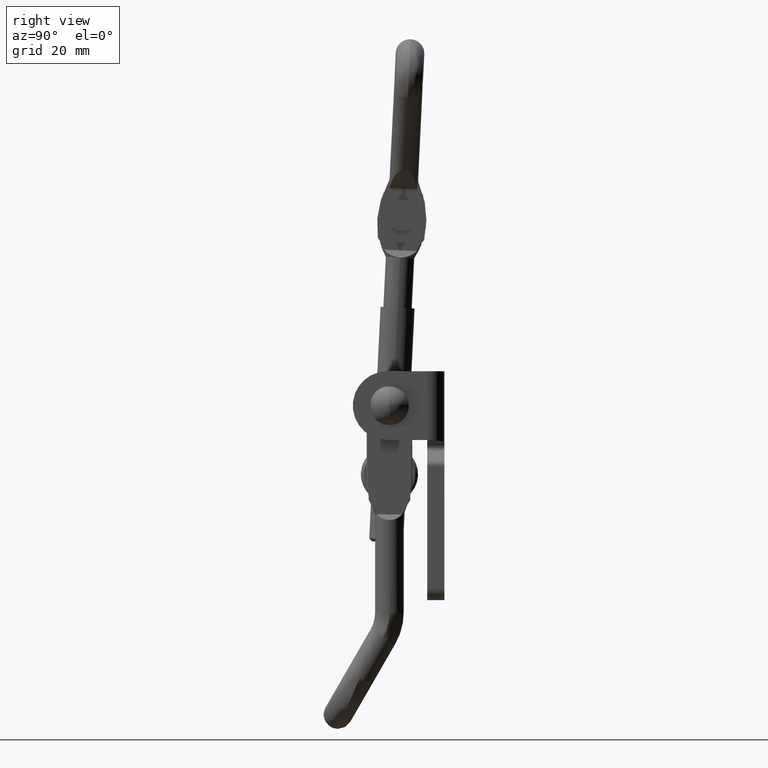
[diagram: clean part render]
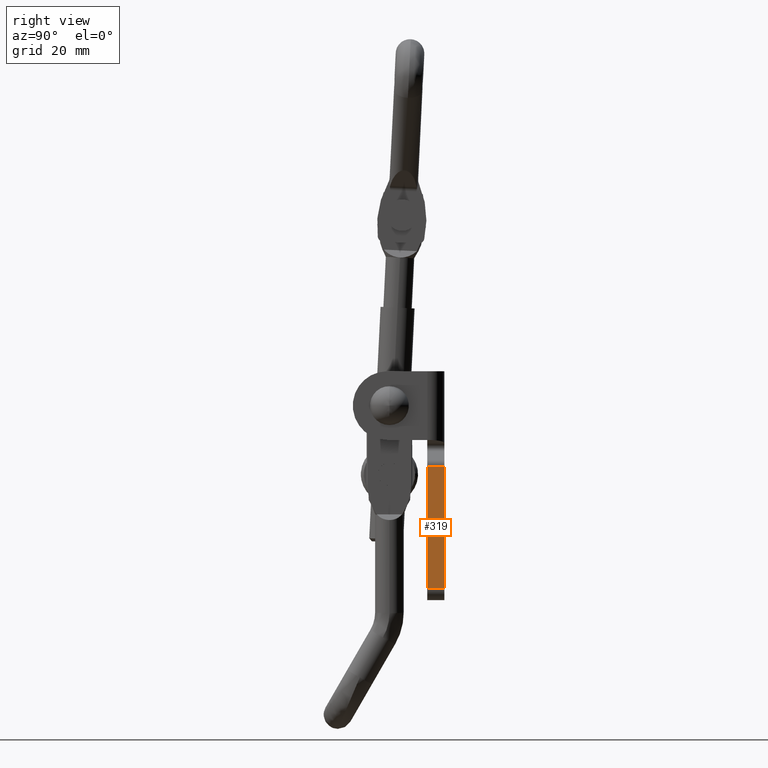
[diagram: same view with one face highlighted and labeled with its STEP entity id]
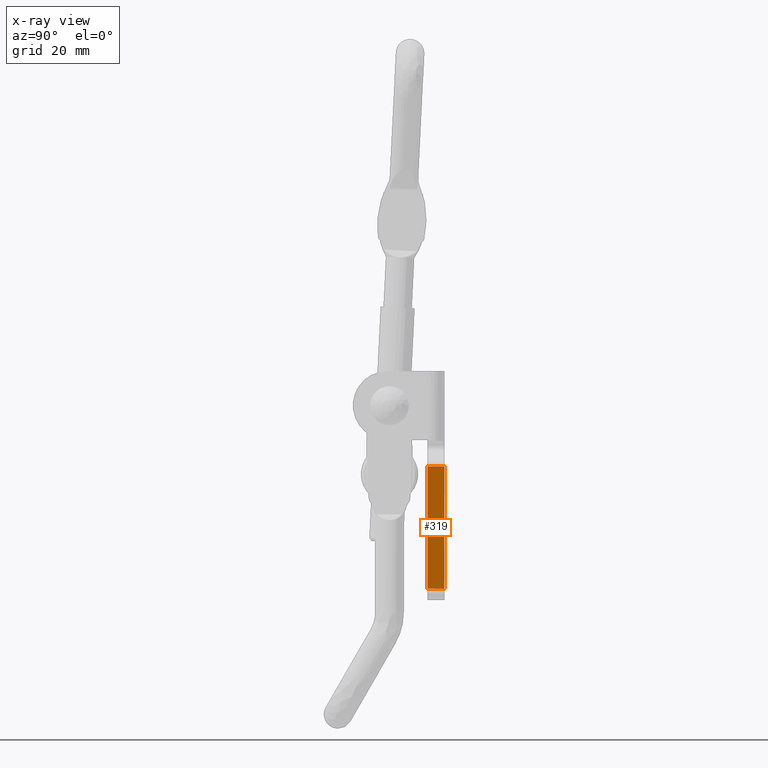
[diagram: x-ray of the same camera — body ghosted, the highlighted face saturated]
A machine part, right view. The second image highlights one B-rep face of the part: STEP entity #319.
The next image is the same camera in x-ray: the body ghosted, the highlighted face saturated — about 0% of this face is hidden behind the body in this view.
In plain terms, the highlighted planar face has unit normal (1, 0, 0).
Its self-contained STEP definition (entity closure, byte-faithful):
#319=ADVANCED_FACE('',(#1400),#1399,.T.);
#1399=PLANE('',#3095);
#1400=FACE_OUTER_BOUND('',#3096,.T.);
#3092=CARTESIAN_POINT('',(1.25000000000E+01,-3.30000000003E+00,2.55165476221E+01));
#3093=DIRECTION('',(1.00000000000E+00,-0.00000000000E+00,0.00000000000E+00));
#3094=DIRECTION('',(0.00000000000E+00,0.00000000000E+00,-1.00000000000E+00));
#3095=AXIS2_PLACEMENT_3D('',#3092,#3093,#3094);
#3096=EDGE_LOOP('',(#4572,#4573,#4574,#4575));
#4572=ORIENTED_EDGE('',*,*,#5265,.F.);
#4573=ORIENTED_EDGE('',*,*,#5310,.F.);
#4574=ORIENTED_EDGE('',*,*,#5252,.T.);
#4575=ORIENTED_EDGE('',*,*,#5309,.T.);
#5252=EDGE_CURVE('',#6942,#6935,#6943,.T.);
#5265=EDGE_CURVE('',#7025,#7032,#7033,.T.);
#5309=EDGE_CURVE('',#6935,#7032,#7322,.T.);
#5310=EDGE_CURVE('',#6942,#7025,#7328,.T.);
#6935=VERTEX_POINT('',#9939);
#6942=VERTEX_POINT('',#9944);
#6943=LINE('',#9945,#9946);
#7025=VERTEX_POINT('',#9998);
#7032=VERTEX_POINT('',#10003);
#7033=LINE('',#10004,#10005);
#7322=LINE('',#10180,#10181);
#7328=LINE('',#10183,#10184);
#9939=CARTESIAN_POINT('',(1.25000000000E+01,-3.00000000003E+00,2.00000000000E+00));
#9944=CARTESIAN_POINT('',(1.25000000000E+01,-3.00000000003E+00,2.33786796564E+01));
#9945=CARTESIAN_POINT('',(1.25000000000E+01,-3.00000000003E+00,2.33786796564E+01));
#9946=VECTOR('',#9947,2.13786796564E+01);
#9947=DIRECTION('',(0.00000000000E+00,0.00000000000E+00,-1.00000000000E+00));
#9998=CARTESIAN_POINT('',(1.25000000000E+01,-4.65183447318E-11,2.33786796564E+01));
#10003=CARTESIAN_POINT('',(1.25000000000E+01,-4.65183447318E-11,2.00000000000E+00));
#10004=CARTESIAN_POINT('',(1.25000000000E+01,-4.65183447318E-11,2.33786796564E+01));
#10005=VECTOR('',#10006,2.13786796564E+01);
#10006=DIRECTION('',(0.00000000000E+00,0.00000000000E+00,-1.00000000000E+00));
#10180=CARTESIAN_POINT('',(1.25000000000E+01,-3.00000000003E+00,2.00000000000E+00));
#10181=VECTOR('',#10182,2.99999999999E+00);
#10182=DIRECTION('',(0.00000000000E+00,1.00000000000E+00,0.00000000000E+00));
#10183=CARTESIAN_POINT('',(1.25000000000E+01,-3.00000000003E+00,2.33786796564E+01));
#10184=VECTOR('',#10185,2.99999999999E+00);
#10185=DIRECTION('',(0.00000000000E+00,1.00000000000E+00,0.00000000000E+00));